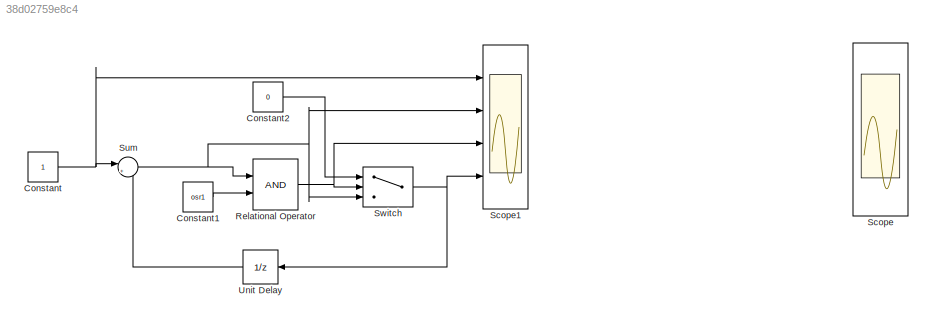
MODEL slx_38d02759e8c4
KIND model
BLOCK [Constant] Constant
  SampleTime = 1/fs
BLOCK [Constant] Constant1
  SampleTime = 1/fs
  Value = osr1
BLOCK [Constant] Constant2
  SampleTime = 1/fs
  Value = 0
BLOCK [RelationalOperator] Relational Operator
  InputSameDT = off
  OutDataTypeStr = boolean
  Ports = [2, 1]
  SampleTime = 1/fs
BLOCK [Scope] Scope
  DataFormat = StructureWithTime
  Floating = off
  MaxDataPoints = 20000
  NumInputPorts = 4
  Ports = [4]
  SampleTime = 0
  ShowLegends = off
  TimeRange = 0.02
  YMax = 0.90000003~2~0.8~1
  YMin = 0.89999997~0.8~-0.2~-1
BLOCK [Scope] Scope1
  DataFormat = StructureWithTime
  Floating = off
  LimitDataPoints = off
  NumInputPorts = 4
  Ports = [4]
  SampleTime = 0
  SaveName = ScopeData1
  ShowLegends = off
  YMax = 5~1.5~5~5
  YMin = -5~-0.5~-5~-5
BLOCK [Sum] Sum
  IconShape = round
  InputSameDT = off
  Inputs = |++
  OutDataTypeStr = Inherit: Inherit via internal rule
  Ports = [2, 1]
  SampleTime = 1/fs
  SaturateOnIntegerOverflow = off
BLOCK [Switch] Switch
  InputSameDT = off
  SampleTime = 1/fs
  SaturateOnIntegerOverflow = off
BLOCK [UnitDelay] Unit Delay
  InputProcessing = Elements as channels (sample based)
  SampleTime = 1/fs
LINE Constant1:1 -> Relational Operator:2
LINE Constant2:1 -> Switch:1
NET Constant:1 -> Scope1:1, Sum:1
NET Relational Operator:1 -> Scope1:3, Switch:2
NET Sum:1 -> Relational Operator:1, Scope1:2, Switch:3
NET Switch:1 -> Scope1:4, Unit Delay:1
LINE Unit Delay:1 -> Sum:2
note: NET lines group one-source signal fan-out (src -> all destinations, sorted); 1:1 wires keep LINE
